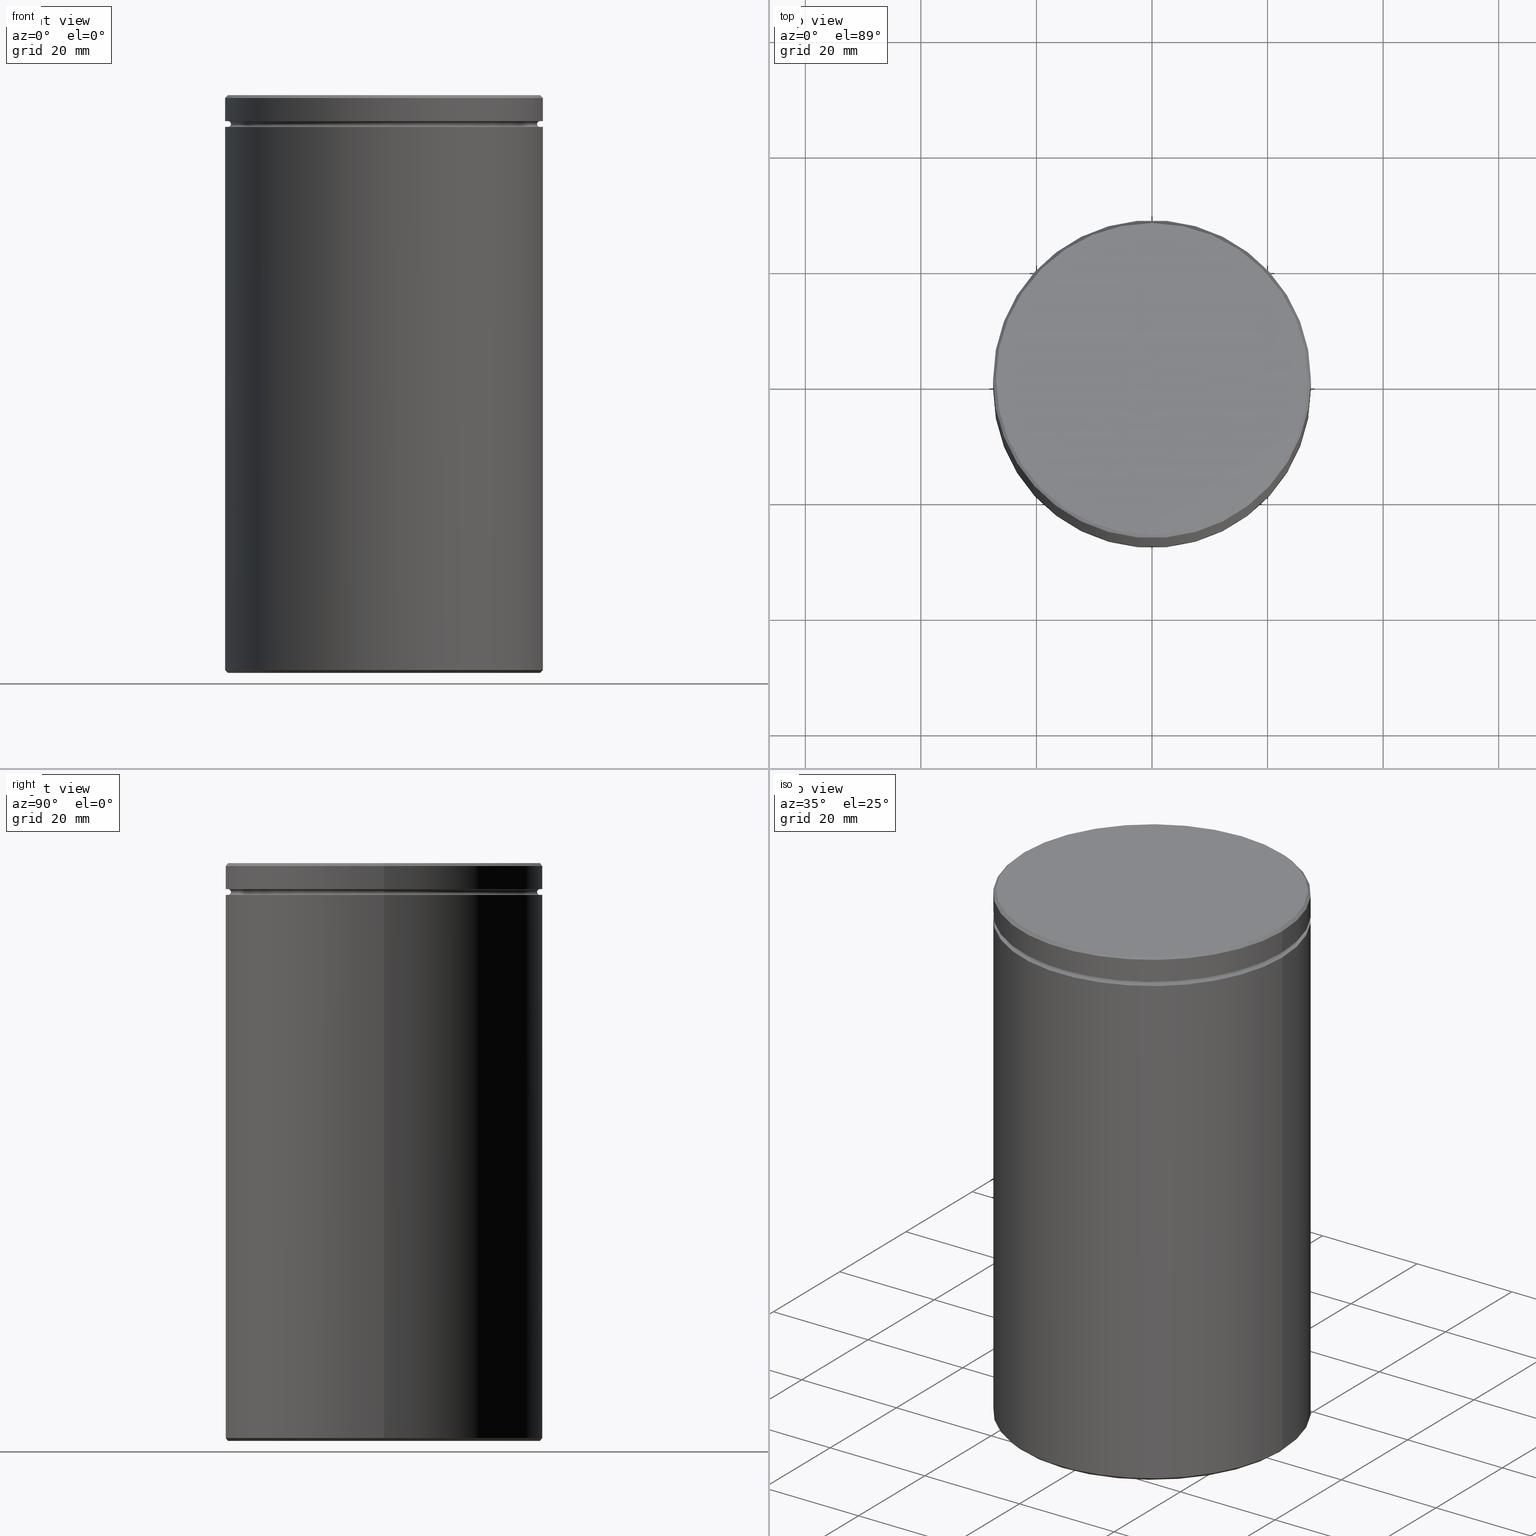
[diagram: canonical four-view strip — front | top / right | iso, engineering-drawing reading convention]
A machine part, canonical four-view strip (front | top / right | iso — engineering-drawing reading convention). The complete STEP part file that produces these views, byte-faithful:
ISO-10303-21;
HEADER;
FILE_DESCRIPTION (( 'STEP AP203' ),
    '1' );
FILE_NAME ('9ac2.STEP',
    '2024-01-02T17:54:37',
    ( '' ),
    ( '' ),
    'SwSTEP 2.0',
    'SolidWorks 2019',
    '' );
FILE_SCHEMA (( 'CONFIG_CONTROL_DESIGN' ));
ENDSEC;

DATA;
#1 = DATE_AND_TIME ( #439, #125 ) ;
#2 = DIRECTION ( 'NONE',  ( 0.000000000000000000, 0.000000000000000000, -1.000000000000000000 ) ) ;
#3 = EDGE_LOOP ( 'NONE', ( #227, #422 ) ) ;
#4 = LINE ( 'NONE', #262, #310 ) ;
#5 = DIRECTION ( 'NONE',  ( -0.000000000000000000, -0.000000000000000000, 1.000000000000000000 ) ) ;
#6 = ORIENTED_EDGE ( 'NONE', *, *, #9, .T. ) ;
#7 = AXIS2_PLACEMENT_3D ( 'NONE', #317, #569, #348 ) ;
#8 = CARTESIAN_POINT ( 'NONE',  ( -27.00000000000000000, 0.000000000000000000, -5.000000000000000888 ) ) ;
#9 = EDGE_CURVE ( 'NONE', #347, #534, #212, .T. ) ;
#10 = EDGE_LOOP ( 'NONE', ( #473, #131, #211, #224 ) ) ;
#11 = CARTESIAN_POINT ( 'NONE',  ( 0.000000000000000000, 0.000000000000000000, -4.500000000000000888 ) ) ;
#12 = EDGE_LOOP ( 'NONE', ( #319, #200, #179, #83 ) ) ;
#13 = ORIENTED_EDGE ( 'NONE', *, *, #49, .T. ) ;
#14 = CARTESIAN_POINT ( 'NONE',  ( 0.000000000000000000, 0.000000000000000000, 0.000000000000000000 ) ) ;
#15 = UNCERTAINTY_MEASURE_WITH_UNIT (LENGTH_MEASURE( 1.000000000000000082E-05 ), #445, 'distance_accuracy_value', 'NONE');
#16 = CARTESIAN_POINT ( 'NONE',  ( 27.00000000000000000, 3.306546357697854128E-15, -4.500000000000000888 ) ) ;
#17 = CARTESIAN_POINT ( 'NONE',  ( -20.50000000000000000, 0.000000000000000000, -29.00000000000001066 ) ) ;
#18 = AXIS2_PLACEMENT_3D ( 'NONE', #231, #5, #434 ) ;
#19 = CALENDAR_DATE ( 2024, 2, 1 ) ;
#20 = CARTESIAN_POINT ( 'NONE',  ( 27.50000000000000000, 0.000000000000000000, -0.5000000000000143219 ) ) ;
#21 = CARTESIAN_POINT ( 'NONE',  ( 27.00000000000000000, 3.306546357697853733E-15, -5.000000000000000888 ) ) ;
#22 = DIRECTION ( 'NONE',  ( -0.000000000000000000, -0.000000000000000000, -1.000000000000000000 ) ) ;
#23 = CARTESIAN_POINT ( 'NONE',  ( -27.50000000000000000, 3.367778697655221307E-15, -99.49999999999995737 ) ) ;
#24 = AXIS2_PLACEMENT_3D ( 'NONE', #504, #108, #60 ) ;
#25 = CIRCLE ( 'NONE', #247, 0.5000000000000004441 ) ;
#26 = CARTESIAN_POINT ( 'NONE',  ( 26.99999999999997868, 3.337162527676536337E-15, 0.000000000000000000 ) ) ;
#27 = LINE ( 'NONE', #296, #449 ) ;
#28 = LINE ( 'NONE', #181, #98 ) ;
#29 = ORIENTED_EDGE ( 'NONE', *, *, #366, .T. ) ;
#30 = EDGE_CURVE ( 'NONE', #524, #491, #184, .T. ) ;
#31 = CARTESIAN_POINT ( 'NONE',  ( 0.000000000000000000, 0.000000000000000000, -29.00000000000001066 ) ) ;
#32 = APPROVAL_PERSON_ORGANIZATION ( #312, #44, #415 ) ;
#33 = CALENDAR_DATE ( 2024, 2, 1 ) ;
#34 = DIRECTION ( 'NONE',  ( -0.000000000000000000, -0.000000000000000000, 1.000000000000000000 ) ) ;
#35 = CC_DESIGN_PERSON_AND_ORGANIZATION_ASSIGNMENT ( #522, #129, ( #507 ) ) ;
#36 = CARTESIAN_POINT ( 'NONE',  ( 27.50000000000000000, 0.000000000000000000, 0.000000000000000000 ) ) ;
#37 = VERTEX_POINT ( 'NONE', #20 ) ;
#38 = FACE_OUTER_BOUND ( 'NONE', #314, .T. ) ;
#39 = ORIENTED_EDGE ( 'NONE', *, *, #294, .T. ) ;
#40 = AXIS2_PLACEMENT_3D ( 'NONE', #72, #332, #157 ) ;
#41 = PERSON_AND_ORGANIZATION ( #162, #437 ) ;
#42 = CARTESIAN_POINT ( 'NONE',  ( 26.99999999999996803, 0.000000000000000000, -100.0000000000000000 ) ) ;
#43 = VERTEX_POINT ( 'NONE', #499 ) ;
#44 = APPROVAL ( #454, 'NEUR�EN�' ) ;
#45 = CARTESIAN_POINT ( 'NONE',  ( 0.000000000000000000, 0.000000000000000000, -29.00000000000001066 ) ) ;
#46 = ORIENTED_EDGE ( 'NONE', *, *, #472, .F. ) ;
#47 = DIRECTION ( 'NONE',  ( -0.000000000000000000, -0.000000000000000000, 1.000000000000000000 ) ) ;
#48 = CARTESIAN_POINT ( 'NONE',  ( 0.000000000000000000, 27.50000000000000000, -100.0000000000000000 ) ) ;
#49 = EDGE_CURVE ( 'NONE', #252, #403, #202, .T. ) ;
#50 = DIRECTION ( 'NONE',  ( 1.000000000000000000, 0.000000000000000000, 0.000000000000000000 ) ) ;
#51 = AXIS2_PLACEMENT_3D ( 'NONE', #375, #553, #75 ) ;
#52 = EDGE_LOOP ( 'NONE', ( #446, #563 ) ) ;
#53 = VECTOR ( 'NONE', #115, 1000.000000000000000 ) ;
#54 = CARTESIAN_POINT ( 'NONE',  ( 0.000000000000000000, 0.000000000000000000, -4.999999999999999112 ) ) ;
#55 = VECTOR ( 'NONE', #34, 1000.000000000000000 ) ;
#56 = PRODUCT_DEFINITION ( 'NEZN�M�', '', #285, #501 ) ;
#57 = ORIENTED_EDGE ( 'NONE', *, *, #567, .F. ) ;
#58 = VERTEX_POINT ( 'NONE', #16 ) ;
#59 = DIRECTION ( 'NONE',  ( -1.000000000000000000, 0.000000000000000000, 0.000000000000000000 ) ) ;
#60 = DIRECTION ( 'NONE',  ( 1.000000000000000000, 0.000000000000000000, 0.000000000000000000 ) ) ;
#61 = PERSON_AND_ORGANIZATION ( #162, #437 ) ;
#62 = EDGE_CURVE ( 'NONE', #347, #368, #509, .T. ) ;
#63 = DIRECTION ( 'NONE',  ( -0.000000000000000000, -0.000000000000000000, 1.000000000000000000 ) ) ;
#64 = CIRCLE ( 'NONE', #557, 26.99999999999996803 ) ;
#65 = CIRCLE ( 'NONE', #158, 27.50000000000000000 ) ;
#66 = CC_DESIGN_PERSON_AND_ORGANIZATION_ASSIGNMENT ( #418, #114, ( #285 ) ) ;
#67 = DIRECTION ( 'NONE',  ( 1.000000000000000000, 0.000000000000000000, 0.000000000000000000 ) ) ;
#68 = APPROVAL_DATE_TIME ( #544, #119 ) ;
#69 = EDGE_LOOP ( 'NONE', ( #160, #186, #425, #384 ) ) ;
#70 = DIRECTION ( 'NONE',  ( 1.000000000000000000, 0.000000000000000000, 0.000000000000000000 ) ) ;
#71 = EDGE_CURVE ( 'NONE', #524, #206, #219, .T. ) ;
#72 = CARTESIAN_POINT ( 'NONE',  ( 0.000000000000000000, 0.000000000000000000, -100.0000000000000000 ) ) ;
#73 = AXIS2_PLACEMENT_3D ( 'NONE', #280, #152, #322 ) ;
#74 = TOROIDAL_SURFACE ( 'NONE', #428, 27.00000000000000000, 0.5000000000000000000 ) ;
#75 = DIRECTION ( 'NONE',  ( -1.000000000000000000, 0.000000000000000000, 0.000000000000000000 ) ) ;
#76 = EDGE_CURVE ( 'NONE', #534, #43, #462, .T. ) ;
#77 = CC_DESIGN_PERSON_AND_ORGANIZATION_ASSIGNMENT ( #61, #360, ( #329 ) ) ;
#78 = MECHANICAL_CONTEXT ( 'NONE', #398, 'mechanical' ) ;
#79 = DIRECTION ( 'NONE',  ( 0.000000000000000000, 0.000000000000000000, -1.000000000000000000 ) ) ;
#80 = CIRCLE ( 'NONE', #342, 26.99999999999997868 ) ;
#81 = CIRCLE ( 'NONE', #264, 27.50000000000000000 ) ;
#82 = CYLINDRICAL_SURFACE ( 'NONE', #138, 27.50000000000000000 ) ;
#83 = ORIENTED_EDGE ( 'NONE', *, *, #432, .F. ) ;
#84 = ADVANCED_FACE ( 'NONE', ( #464 ), #465, .F. ) ;
#85 = DIRECTION ( 'NONE',  ( 1.000000000000000000, 0.000000000000000000, 0.000000000000000000 ) ) ;
#86 = ORIENTED_EDGE ( 'NONE', *, *, #94, .F. ) ;
#87 = DIRECTION ( 'NONE',  ( -0.000000000000000000, -1.000000000000000000, -0.000000000000000000 ) ) ;
#88 = CIRCLE ( 'NONE', #167, 0.5000000000000004441 ) ;
#89 = CONICAL_SURFACE ( 'NONE', #565, 26.99999999999997868, 0.7853981633974552734 ) ;
#90 = DIRECTION ( 'NONE',  ( 0.000000000000000000, 0.000000000000000000, -1.000000000000000000 ) ) ;
#91 = CYLINDRICAL_SURFACE ( 'NONE', #352, 27.50000000000000000 ) ;
#92 = ORIENTED_EDGE ( 'NONE', *, *, #315, .F. ) ;
#93 = CARTESIAN_POINT ( 'NONE',  ( -27.00000000000000000, 3.306546357697853733E-15, -4.999999999999999112 ) ) ;
#94 = EDGE_CURVE ( 'NONE', #518, #345, #457, .T. ) ;
#95 = FACE_BOUND ( 'NONE', #52, .T. ) ;
#96 = ORIENTED_EDGE ( 'NONE', *, *, #274, .T. ) ;
#97 = FACE_OUTER_BOUND ( 'NONE', #515, .T. ) ;
#98 = VECTOR ( 'NONE', #399, 1000.000000000000000 ) ;
#99 = ORIENTED_EDGE ( 'NONE', *, *, #71, .T. ) ;
#100 = CIRCLE ( 'NONE', #558, 27.00000000000000000 ) ;
#101 = PLANE ( 'NONE',  #109 ) ;
#102 = ORIENTED_EDGE ( 'NONE', *, *, #438, .T. ) ;
#103 = DIRECTION ( 'NONE',  ( -0.000000000000000000, -0.000000000000000000, 1.000000000000000000 ) ) ;
#104 = ADVANCED_FACE ( 'NONE', ( #106 ), #367, .T. ) ;
#105 = SECURITY_CLASSIFICATION_LEVEL ( 'unclassified' ) ;
#106 = FACE_OUTER_BOUND ( 'NONE', #120, .T. ) ;
#107 = PERSON_AND_ORGANIZATION ( #162, #437 ) ;
#108 = DIRECTION ( 'NONE',  ( -0.000000000000000000, -0.000000000000000000, 1.000000000000000000 ) ) ;
#109 = AXIS2_PLACEMENT_3D ( 'NONE', #305, #483, #143 ) ;
#110 = CC_DESIGN_APPROVAL ( #44, ( #285 ) ) ;
#111 = DATE_AND_TIME ( #500, #353 ) ;
#112 = EDGE_CURVE ( 'NONE', #518, #297, #290, .T. ) ;
#113 = DIRECTION ( 'NONE',  ( 1.000000000000000000, 0.000000000000000000, 0.000000000000000000 ) ) ;
#114 = PERSON_AND_ORGANIZATION_ROLE ( 'creator' ) ;
#115 = DIRECTION ( 'NONE',  ( -0.7071067811865401342, 8.659560562354842879E-17, 0.7071067811865549002 ) ) ;
#116 = CC_DESIGN_PERSON_AND_ORGANIZATION_ASSIGNMENT ( #107, #194, ( #285 ) ) ;
#117 = DIRECTION ( 'NONE',  ( -0.000000000000000000, -0.000000000000000000, 1.000000000000000000 ) ) ;
#118 = AXIS2_PLACEMENT_3D ( 'NONE', #243, #548, #414 ) ;
#119 = APPROVAL ( #410, 'NEUR�EN�' ) ;
#120 = EDGE_LOOP ( 'NONE', ( #92, #170, #350, #57 ) ) ;
#121 = DIRECTION ( 'NONE',  ( -1.000000000000000000, 0.000000000000000000, 0.000000000000000000 ) ) ;
#122 = EDGE_LOOP ( 'NONE', ( #494, #189, #13, #463 ) ) ;
#123 = AXIS2_PLACEMENT_3D ( 'NONE', #163, #333, #468 ) ;
#124 = APPROVAL_PERSON_ORGANIZATION ( #370, #119, #459 ) ;
#125 = LOCAL_TIME ( 18, 54, 37.00000000000000000, #484 ) ;
#126 = ADVANCED_FACE ( 'NONE', ( #372, #551 ), #411, .T. ) ;
#127 = CARTESIAN_POINT ( 'NONE',  ( 0.000000000000000000, 0.000000000000000000, 0.000000000000000000 ) ) ;
#128 = VERTEX_POINT ( 'NONE', #365 ) ;
#129 = PERSON_AND_ORGANIZATION_ROLE ( 'design_owner' ) ;
#130 = CARTESIAN_POINT ( 'NONE',  ( -27.00000000000000000, 0.000000000000000000, -4.500000000000000888 ) ) ;
#131 = ORIENTED_EDGE ( 'NONE', *, *, #155, .T. ) ;
#132 = DIRECTION ( 'NONE',  ( -1.000000000000000000, 1.224646799147349509E-16, 0.000000000000000000 ) ) ;
#133 = DIRECTION ( 'NONE',  ( -1.000000000000000000, 0.000000000000000000, 0.000000000000000000 ) ) ;
#134 = EDGE_LOOP ( 'NONE', ( #39, #173 ) ) ;
#135 = DIRECTION ( 'NONE',  ( 0.7071067811865524577, 8.659560562354994488E-17, -0.7071067811865426878 ) ) ;
#136 = EDGE_CURVE ( 'NONE', #206, #524, #176, .T. ) ;
#137 = CIRCLE ( 'NONE', #458, 27.00000000000000000 ) ;
#138 = AXIS2_PLACEMENT_3D ( 'NONE', #127, #300, #479 ) ;
#139 = DIRECTION ( 'NONE',  ( -1.000000000000000000, 0.000000000000000000, -0.000000000000000000 ) ) ;
#140 = ORIENTED_EDGE ( 'NONE', *, *, #9, .F. ) ;
#141 = FACE_OUTER_BOUND ( 'NONE', #69, .T. ) ;
#142 = VERTEX_POINT ( 'NONE', #26 ) ;
#143 = DIRECTION ( 'NONE',  ( 1.000000000000000000, 0.000000000000000000, 0.000000000000000000 ) ) ;
#144 = EDGE_LOOP ( 'NONE', ( #527, #566, #326, #46 ) ) ;
#145 = EDGE_LOOP ( 'NONE', ( #450, #140, #386, #260 ) ) ;
#146 = DIRECTION ( 'NONE',  ( -0.000000000000000000, -0.000000000000000000, 1.000000000000000000 ) ) ;
#147 = DATE_AND_TIME ( #363, #299 ) ;
#148 = ORIENTED_EDGE ( 'NONE', *, *, #503, .T. ) ;
#149 = CIRCLE ( 'NONE', #549, 27.50000000000000000 ) ;
#150 = CARTESIAN_POINT ( 'NONE',  ( 0.000000000000000000, 0.000000000000000000, -99.49999999999995737 ) ) ;
#151 = EDGE_CURVE ( 'NONE', #142, #252, #239, .T. ) ;
#152 = DIRECTION ( 'NONE',  ( -0.000000000000000000, -0.000000000000000000, 1.000000000000000000 ) ) ;
#153 = ORIENTED_EDGE ( 'NONE', *, *, #253, .F. ) ;
#154 = DIRECTION ( 'NONE',  ( -0.000000000000000000, -0.000000000000000000, 1.000000000000000000 ) ) ;
#155 = EDGE_CURVE ( 'NONE', #128, #480, #149, .T. ) ;
#156 = MANIFOLD_SOLID_BREP ( 'Zaoblit1', #229 ) ;
#157 = DIRECTION ( 'NONE',  ( -1.000000000000000000, 0.000000000000000000, 0.000000000000000000 ) ) ;
#158 = AXIS2_PLACEMENT_3D ( 'NONE', #226, #313, #85 ) ;
#159 = COORDINATED_UNIVERSAL_TIME_OFFSET ( 1, 0, .AHEAD. ) ;
#160 = ORIENTED_EDGE ( 'NONE', *, *, #136, .F. ) ;
#161 = CARTESIAN_POINT ( 'NONE',  ( 20.50000000000000000, 2.510525938252074481E-15, -29.00000000000001066 ) ) ;
#162 = PERSON ( 'NEUR�EN�', 'NEUR�EN�', 'NEUR�EN�', ('NEUR�EN�'), ('NEUR�EN�'), ('NEUR�EN�') ) ;
#163 = CARTESIAN_POINT ( 'NONE',  ( 0.000000000000000000, 0.000000000000000000, -0.5000000000000143219 ) ) ;
#164 = CARTESIAN_POINT ( 'NONE',  ( -27.50000000000000000, 3.367778697655221307E-15, -0.5000000000000143219 ) ) ;
#165 = ORIENTED_EDGE ( 'NONE', *, *, #240, .F. ) ;
#166 = EDGE_CURVE ( 'NONE', #534, #347, #400, .T. ) ;
#167 = AXIS2_PLACEMENT_3D ( 'NONE', #8, #87, #275 ) ;
#168 = AXIS2_PLACEMENT_3D ( 'NONE', #429, #172, #340 ) ;
#169 = COORDINATED_UNIVERSAL_TIME_OFFSET ( 1, 0, .AHEAD. ) ;
#170 = ORIENTED_EDGE ( 'NONE', *, *, #472, .T. ) ;
#171 = CC_DESIGN_DATE_AND_TIME_ASSIGNMENT ( #1, #349, ( #56 ) ) ;
#172 = DIRECTION ( 'NONE',  ( 0.000000000000000000, 0.000000000000000000, -1.000000000000000000 ) ) ;
#173 = ORIENTED_EDGE ( 'NONE', *, *, #567, .T. ) ;
#174 = ADVANCED_FACE ( 'NONE', ( #328 ), #195, .T. ) ;
#175 = CARTESIAN_POINT ( 'NONE',  ( 0.000000000000000000, 0.000000000000000000, -99.49999999999995737 ) ) ;
#176 = CIRCLE ( 'NONE', #362, 26.50000000000000000 ) ;
#177 = DIRECTION ( 'NONE',  ( 0.000000000000000000, 0.000000000000000000, -1.000000000000000000 ) ) ;
#178 = CARTESIAN_POINT ( 'NONE',  ( 0.000000000000000000, 0.000000000000000000, -5.000000000000000888 ) ) ;
#179 = ORIENTED_EDGE ( 'NONE', *, *, #378, .T. ) ;
#180 = EDGE_CURVE ( 'NONE', #297, #182, #542, .T. ) ;
#181 = CARTESIAN_POINT ( 'NONE',  ( 27.50000000000000000, 0.000000000000000000, 0.000000000000000000 ) ) ;
#182 = VERTEX_POINT ( 'NONE', #419 ) ;
#183 = FACE_OUTER_BOUND ( 'NONE', #3, .T. ) ;
#184 = CIRCLE ( 'NONE', #466, 0.5000000000000004441 ) ;
#185 = AXIS2_PLACEMENT_3D ( 'NONE', #45, #2, #139 ) ;
#186 = ORIENTED_EDGE ( 'NONE', *, *, #331, .T. ) ;
#187 = DIRECTION ( 'NONE',  ( -1.000000000000000000, 0.000000000000000000, 0.000000000000000000 ) ) ;
#188 = DIRECTION ( 'NONE',  ( 0.000000000000000000, 0.000000000000000000, -1.000000000000000000 ) ) ;
#189 = ORIENTED_EDGE ( 'NONE', *, *, #208, .F. ) ;
#190 = FACE_OUTER_BOUND ( 'NONE', #10, .T. ) ;
#191 = ORIENTED_EDGE ( 'NONE', *, *, #265, .T. ) ;
#192 = ADVANCED_FACE ( 'NONE', ( #207 ), #531, .T. ) ;
#193 = EDGE_LOOP ( 'NONE', ( #547, #258, #293, #381 ) ) ;
#194 = PERSON_AND_ORGANIZATION_ROLE ( 'design_supplier' ) ;
#195 = CONICAL_SURFACE ( 'NONE', #298, 27.50000000000000000, 0.7853981633974378429 ) ;
#196 = CARTESIAN_POINT ( 'NONE',  ( 27.50000000000000000, 0.000000000000000000, -99.49999999999995737 ) ) ;
#197 = AXIS2_PLACEMENT_3D ( 'NONE', #421, #79, #210 ) ;
#198 = CARTESIAN_POINT ( 'NONE',  ( 0.000000000000000000, 0.000000000000000000, -29.00000000000001066 ) ) ;
#199 = EDGE_CURVE ( 'NONE', #58, #477, #512, .T. ) ;
#200 = ORIENTED_EDGE ( 'NONE', *, *, #371, .T. ) ;
#201 = CARTESIAN_POINT ( 'NONE',  ( 0.000000000000000000, 0.000000000000000000, 0.000000000000000000 ) ) ;
#202 = LINE ( 'NONE', #408, #335 ) ;
#203 = AXIS2_PLACEMENT_3D ( 'NONE', #356, #452, #187 ) ;
#204 = DIRECTION ( 'NONE',  ( -1.000000000000000000, -1.224646799147349509E-16, 0.000000000000000000 ) ) ;
#205 = LOCAL_TIME ( 18, 54, 37.00000000000000000, #159 ) ;
#206 = VERTEX_POINT ( 'NONE', #249 ) ;
#207 = FACE_OUTER_BOUND ( 'NONE', #144, .T. ) ;
#208 = EDGE_CURVE ( 'NONE', #252, #142, #80, .T. ) ;
#209 = DIRECTION ( 'NONE',  ( 0.000000000000000000, 0.000000000000000000, 1.000000000000000000 ) ) ;
#210 = DIRECTION ( 'NONE',  ( 1.000000000000000000, 0.000000000000000000, 0.000000000000000000 ) ) ;
#211 = ORIENTED_EDGE ( 'NONE', *, *, #432, .T. ) ;
#212 = CIRCLE ( 'NONE', #276, 20.50000000000000000 ) ;
#213 = CIRCLE ( 'NONE', #18, 27.00000000000000000 ) ;
#214 = DATE_AND_TIME ( #33, #460 ) ;
#215 = CARTESIAN_POINT ( 'NONE',  ( 0.000000000000000000, 0.000000000000000000, -5.500000000000000000 ) ) ;
#216 = EDGE_CURVE ( 'NONE', #37, #403, #283, .T. ) ;
#217 = DIRECTION ( 'NONE',  ( 0.000000000000000000, 0.000000000000000000, -1.000000000000000000 ) ) ;
#218 = CARTESIAN_POINT ( 'NONE',  ( 27.50000000000000000, 0.000000000000000000, -5.500000000000000000 ) ) ;
#219 = CIRCLE ( 'NONE', #73, 26.50000000000000000 ) ;
#220 = TOROIDAL_SURFACE ( 'NONE', #256, 27.00000000000000000, 0.5000000000000000000 ) ;
#221 = CARTESIAN_POINT ( 'NONE',  ( 20.50000000000000000, 2.510525938252074481E-15, -29.00000000000001066 ) ) ;
#222 = FACE_OUTER_BOUND ( 'NONE', #12, .T. ) ;
#223 = EDGE_CURVE ( 'NONE', #345, #490, #28, .T. ) ;
#224 = ORIENTED_EDGE ( 'NONE', *, *, #216, .T. ) ;
#225 = DIRECTION ( 'NONE',  ( 0.000000000000000000, 0.000000000000000000, -1.000000000000000000 ) ) ;
#226 = CARTESIAN_POINT ( 'NONE',  ( 0.000000000000000000, 0.000000000000000000, -5.500000000000000000 ) ) ;
#227 = ORIENTED_EDGE ( 'NONE', *, *, #338, .F. ) ;
#228 = DIRECTION ( 'NONE',  ( -1.000000000000000000, 0.000000000000000000, -0.000000000000000000 ) ) ;
#229 = CLOSED_SHELL ( 'NONE', ( #552, #323, #174, #461, #453, #475, #281, #511, #288, #344, #248, #126, #104, #84, #560, #423, #192, #306, #537 ) ) ;
#230 = CIRCLE ( 'NONE', #197, 27.50000000000000000 ) ;
#231 = CARTESIAN_POINT ( 'NONE',  ( 0.000000000000000000, 0.000000000000000000, -4.500000000000000888 ) ) ;
#232 = ORIENTED_EDGE ( 'NONE', *, *, #49, .F. ) ;
#233 = DIRECTION ( 'NONE',  ( -0.000000000000000000, -0.000000000000000000, 1.000000000000000000 ) ) ;
#234 = EDGE_CURVE ( 'NONE', #368, #43, #263, .T. ) ;
#235 = ORIENTED_EDGE ( 'NONE', *, *, #387, .F. ) ;
#236 = FACE_OUTER_BOUND ( 'NONE', #430, .T. ) ;
#237 = EDGE_LOOP ( 'NONE', ( #339, #301 ) ) ;
#238 = DIRECTION ( 'NONE',  ( -0.7071067811865524577, 0.000000000000000000, -0.7071067811865426878 ) ) ;
#239 = CIRCLE ( 'NONE', #24, 26.99999999999997868 ) ;
#240 = EDGE_CURVE ( 'NONE', #206, #477, #88, .T. ) ;
#241 = CARTESIAN_POINT ( 'NONE',  ( -20.50000000000000000, 0.000000000000000000, -29.00000000000001066 ) ) ;
#242 = CIRCLE ( 'NONE', #292, 20.50000000000000000 ) ;
#243 = CARTESIAN_POINT ( 'NONE',  ( 0.000000000000000000, 0.000000000000000000, -29.00000000000001066 ) ) ;
#244 = DIRECTION ( 'NONE',  ( 0.000000000000000000, -1.000000000000000000, 0.000000000000000000 ) ) ;
#245 = CARTESIAN_POINT ( 'NONE',  ( 0.000000000000000000, 0.000000000000000000, -4.500000000000000888 ) ) ;
#246 = AXIS2_PLACEMENT_3D ( 'NONE', #287, #369, #113 ) ;
#247 = AXIS2_PLACEMENT_3D ( 'NONE', #21, #417, #204 ) ;
#248 = ADVANCED_FACE ( 'NONE', ( #359, #183 ), #309, .T. ) ;
#249 = CARTESIAN_POINT ( 'NONE',  ( -26.50000000000000000, 3.275930187719169552E-15, -4.999999999999999112 ) ) ;
#250 = EDGE_LOOP ( 'NONE', ( #394, #316, #148, #389 ) ) ;
#251 = CARTESIAN_POINT ( 'NONE',  ( 0.000000000000000000, 0.000000000000000000, 0.000000000000000000 ) ) ;
#252 = VERTEX_POINT ( 'NONE', #436 ) ;
#253 = EDGE_CURVE ( 'NONE', #297, #518, #64, .T. ) ;
#254 = DIRECTION ( 'NONE',  ( -0.000000000000000000, -0.000000000000000000, 1.000000000000000000 ) ) ;
#255 = AXIS2_PLACEMENT_3D ( 'NONE', #198, #22, #502 ) ;
#256 = AXIS2_PLACEMENT_3D ( 'NONE', #351, #532, #267 ) ;
#257 = DIRECTION ( 'NONE',  ( -1.000000000000000000, 0.000000000000000000, 0.000000000000000000 ) ) ;
#258 = ORIENTED_EDGE ( 'NONE', *, *, #315, .T. ) ;
#259 = DIRECTION ( 'NONE',  ( 1.000000000000000000, 0.000000000000000000, 0.000000000000000000 ) ) ;
#260 = ORIENTED_EDGE ( 'NONE', *, *, #234, .T. ) ;
#261 = ORIENTED_EDGE ( 'NONE', *, *, #274, .F. ) ;
#262 = CARTESIAN_POINT ( 'NONE',  ( 26.99999999999997868, 3.306546357697850972E-15, 0.000000000000000000 ) ) ;
#263 = CIRCLE ( 'NONE', #203, 20.50000000000000000 ) ;
#264 = AXIS2_PLACEMENT_3D ( 'NONE', #517, #254, #555 ) ;
#265 = EDGE_CURVE ( 'NONE', #142, #37, #4, .T. ) ;
#266 = ORIENTED_EDGE ( 'NONE', *, *, #199, .T. ) ;
#267 = DIRECTION ( 'NONE',  ( 1.000000000000000000, 0.000000000000000000, 0.000000000000000000 ) ) ;
#268 = APPROVAL ( #377, 'NEUR�EN�' ) ;
#269 = EDGE_LOOP ( 'NONE', ( #505, #29, #405, #165 ) ) ;
#270 = PRODUCT_DEFINITION_SHAPE ( 'NONE', 'NONE',  #56 ) ;
#271 = DIRECTION ( 'NONE',  ( 1.000000000000000000, 0.000000000000000000, 0.000000000000000000 ) ) ;
#272 = CARTESIAN_POINT ( 'NONE',  ( 27.00000000000000000, 0.000000000000000000, -5.500000000000000000 ) ) ;
#273 = CARTESIAN_POINT ( 'NONE',  ( 27.00000000000000000, 0.000000000000000000, -4.999999999999999112 ) ) ;
#274 = EDGE_CURVE ( 'NONE', #435, #491, #137, .T. ) ;
#275 = DIRECTION ( 'NONE',  ( 0.000000000000000000, 0.000000000000000000, -1.000000000000000000 ) ) ;
#276 = AXIS2_PLACEMENT_3D ( 'NONE', #358, #308, #486 ) ;
#277 = CIRCLE ( 'NONE', #497, 0.5000000000000004441 ) ;
#278 = ORIENTED_EDGE ( 'NONE', *, *, #199, .F. ) ;
#279 = CARTESIAN_POINT ( 'NONE',  ( 0.000000000000000000, 0.000000000000000000, 0.000000000000000000 ) ) ;
#280 = CARTESIAN_POINT ( 'NONE',  ( 0.000000000000000000, 0.000000000000000000, -4.999999999999999112 ) ) ;
#281 = ADVANCED_FACE ( 'NONE', ( #222 ), #91, .T. ) ;
#282 = DIRECTION ( 'NONE',  ( -0.000000000000000000, -0.000000000000000000, -1.000000000000000000 ) ) ;
#283 = CIRCLE ( 'NONE', #123, 27.50000000000000000 ) ;
#284 = DIRECTION ( 'NONE',  ( 0.7071067811865401342, 0.000000000000000000, 0.7071067811865549002 ) ) ;
#285 = PRODUCT_DEFINITION_FORMATION_WITH_SPECIFIED_SOURCE ( 'LIBOVOLN�', '', #507, .NOT_KNOWN. ) ;
#286 = DIRECTION ( 'NONE',  ( -0.000000000000000000, -0.000000000000000000, 1.000000000000000000 ) ) ;
#287 = CARTESIAN_POINT ( 'NONE',  ( 0.000000000000000000, 26.50000000000000000, -5.500000000000000000 ) ) ;
#288 = ADVANCED_FACE ( 'NONE', ( #97 ), #101, .T. ) ;
#289 = DIRECTION ( 'NONE',  ( 1.000000000000000000, 0.000000000000000000, 0.000000000000000000 ) ) ;
#290 = CIRCLE ( 'NONE', #40, 26.99999999999996803 ) ;
#291 = ORIENTED_EDGE ( 'NONE', *, *, #30, .T. ) ;
#292 = AXIS2_PLACEMENT_3D ( 'NONE', #388, #90, #393 ) ;
#293 = ORIENTED_EDGE ( 'NONE', *, *, #294, .F. ) ;
#294 = EDGE_CURVE ( 'NONE', #490, #540, #427, .T. ) ;
#295 = DIRECTION ( 'NONE',  ( -1.000000000000000000, 0.000000000000000000, 0.000000000000000000 ) ) ;
#296 = CARTESIAN_POINT ( 'NONE',  ( -27.50000000000000000, 3.367778697655221307E-15, 0.000000000000000000 ) ) ;
#297 = VERTEX_POINT ( 'NONE', #528 ) ;
#298 = AXIS2_PLACEMENT_3D ( 'NONE', #508, #286, #70 ) ;
#299 = LOCAL_TIME ( 18, 54, 37.00000000000000000, #412 ) ;
#300 = DIRECTION ( 'NONE',  ( -0.000000000000000000, -0.000000000000000000, 1.000000000000000000 ) ) ;
#301 = ORIENTED_EDGE ( 'NONE', *, *, #253, .T. ) ;
#302 = APPLICATION_PROTOCOL_DEFINITION ( 'international standard', 'config_control_design', 1994, #426 ) ;
#303 = FACE_OUTER_BOUND ( 'NONE', #456, .T. ) ;
#304 = ORIENTED_EDGE ( 'NONE', *, *, #331, .F. ) ;
#305 = CARTESIAN_POINT ( 'NONE',  ( 0.000000000000000000, 0.000000000000000000, 0.000000000000000000 ) ) ;
#306 = ADVANCED_FACE ( 'NONE', ( #236 ), #220, .F. ) ;
#307 = FACE_OUTER_BOUND ( 'NONE', #269, .T. ) ;
#308 = DIRECTION ( 'NONE',  ( 0.000000000000000000, 0.000000000000000000, -1.000000000000000000 ) ) ;
#309 = PLANE ( 'NONE',  #487 ) ;
#310 = VECTOR ( 'NONE', #135, 1000.000000000000000 ) ;
#311 = TOROIDAL_SURFACE ( 'NONE', #520, 27.00000000000000000, 0.5000000000000000000 ) ;
#312 = PERSON_AND_ORGANIZATION ( #162, #437 ) ;
#313 = DIRECTION ( 'NONE',  ( -0.000000000000000000, -0.000000000000000000, 1.000000000000000000 ) ) ;
#314 = EDGE_LOOP ( 'NONE', ( #6, #564 ) ) ;
#315 = EDGE_CURVE ( 'NONE', #182, #540, #492, .T. ) ;
#316 = ORIENTED_EDGE ( 'NONE', *, *, #76, .T. ) ;
#317 = CARTESIAN_POINT ( 'NONE',  ( 0.000000000000000000, 0.000000000000000000, -5.500000000000000000 ) ) ;
#318 = EDGE_LOOP ( 'NONE', ( #102, #96 ) ) ;
#319 = ORIENTED_EDGE ( 'NONE', *, *, #338, .T. ) ;
#320 = DIRECTION ( 'NONE',  ( -0.000000000000000000, -0.000000000000000000, 1.000000000000000000 ) ) ;
#321 = CARTESIAN_POINT ( 'NONE',  ( 27.50000000000000000, 0.000000000000000000, -99.49999999999995737 ) ) ;
#322 = DIRECTION ( 'NONE',  ( 1.000000000000000000, 0.000000000000000000, 0.000000000000000000 ) ) ;
#323 = ADVANCED_FACE ( 'NONE', ( #141 ), #311, .F. ) ;
#324 = DIRECTION ( 'NONE',  ( 1.000000000000000000, 0.000000000000000000, 0.000000000000000000 ) ) ;
#325 = DIRECTION ( 'NONE',  ( 1.000000000000000000, 0.000000000000000000, 0.000000000000000000 ) ) ;
#326 = ORIENTED_EDGE ( 'NONE', *, *, #94, .T. ) ;
#327 = VECTOR ( 'NONE', #545, 1000.000000000000000 ) ;
#328 = FACE_OUTER_BOUND ( 'NONE', #471, .T. ) ;
#329 = SECURITY_CLASSIFICATION ( '', '', #105 ) ;
#330 = APPROVAL_DATE_TIME ( #111, #44 ) ;
#331 = EDGE_CURVE ( 'NONE', #206, #435, #277, .T. ) ;
#332 = DIRECTION ( 'NONE',  ( 0.000000000000000000, 0.000000000000000000, -1.000000000000000000 ) ) ;
#333 = DIRECTION ( 'NONE',  ( 0.000000000000000000, 0.000000000000000000, -1.000000000000000000 ) ) ;
#334 = DIRECTION ( 'NONE',  ( -0.000000000000000000, -0.000000000000000000, 1.000000000000000000 ) ) ;
#335 = VECTOR ( 'NONE', #238, 1000.000000000000000 ) ;
#336 = ORIENTED_EDGE ( 'NONE', *, *, #240, .T. ) ;
#337 = AXIS2_PLACEMENT_3D ( 'NONE', #175, #334, #121 ) ;
#338 = EDGE_CURVE ( 'NONE', #480, #128, #448, .T. ) ;
#339 = ORIENTED_EDGE ( 'NONE', *, *, #112, .T. ) ;
#340 = DIRECTION ( 'NONE',  ( -1.000000000000000000, 0.000000000000000000, 0.000000000000000000 ) ) ;
#341 = CARTESIAN_POINT ( 'NONE',  ( 0.000000000000000000, 0.000000000000000000, 0.000000000000000000 ) ) ;
#342 = AXIS2_PLACEMENT_3D ( 'NONE', #420, #117, #289 ) ;
#343 = APPLICATION_PROTOCOL_DEFINITION ( 'international standard', 'config_control_design', 1994, #398 ) ;
#344 = ADVANCED_FACE ( 'NONE', ( #190 ), #406, .T. ) ;
#345 = VERTEX_POINT ( 'NONE', #321 ) ;
#346 = PERSON_AND_ORGANIZATION_ROLE ( 'creator' ) ;
#347 = VERTEX_POINT ( 'NONE', #17 ) ;
#348 = DIRECTION ( 'NONE',  ( 1.000000000000000000, 0.000000000000000000, 0.000000000000000000 ) ) ;
#349 = DATE_TIME_ROLE ( 'creation_date' ) ;
#350 = ORIENTED_EDGE ( 'NONE', *, *, #223, .T. ) ;
#351 = CARTESIAN_POINT ( 'NONE',  ( 0.000000000000000000, 0.000000000000000000, -4.999999999999999112 ) ) ;
#352 = AXIS2_PLACEMENT_3D ( 'NONE', #279, #535, #395 ) ;
#353 = LOCAL_TIME ( 18, 54, 37.00000000000000000, #407 ) ;
#354 = DIRECTION ( 'NONE',  ( -1.000000000000000000, 0.000000000000000000, -0.000000000000000000 ) ) ;
#355 = ORIENTED_EDGE ( 'NONE', *, *, #208, .T. ) ;
#356 = CARTESIAN_POINT ( 'NONE',  ( 0.000000000000000000, 0.000000000000000000, -100.0000000000000000 ) ) ;
#357 = PLANE ( 'NONE',  #373 ) ;
#358 = CARTESIAN_POINT ( 'NONE',  ( 0.000000000000000000, 0.000000000000000000, -29.00000000000001066 ) ) ;
#359 = FACE_BOUND ( 'NONE', #568, .T. ) ;
#360 = PERSON_AND_ORGANIZATION_ROLE ( 'classification_officer' ) ;
#361 = ORIENTED_EDGE ( 'NONE', *, *, #378, .F. ) ;
#362 = AXIS2_PLACEMENT_3D ( 'NONE', #546, #154, #324 ) ;
#363 = CALENDAR_DATE ( 2024, 2, 1 ) ;
#364 =( GEOMETRIC_REPRESENTATION_CONTEXT ( 3 ) GLOBAL_UNCERTAINTY_ASSIGNED_CONTEXT ( ( #15 ) ) GLOBAL_UNIT_ASSIGNED_CONTEXT ( ( #445, #402, #433 ) ) REPRESENTATION_CONTEXT ( 'NONE', 'WORKASPACE' ) );
#365 = CARTESIAN_POINT ( 'NONE',  ( -27.50000000000000000, 3.367778697655221307E-15, -4.500000000000000888 ) ) ;
#366 = EDGE_CURVE ( 'NONE', #524, #58, #25, .T. ) ;
#367 = CYLINDRICAL_SURFACE ( 'NONE', #474, 27.50000000000000000 ) ;
#368 = VERTEX_POINT ( 'NONE', #470 ) ;
#369 = DIRECTION ( 'NONE',  ( 0.000000000000000000, -0.000000000000000000, 1.000000000000000000 ) ) ;
#370 = PERSON_AND_ORGANIZATION ( #162, #437 ) ;
#371 = EDGE_CURVE ( 'NONE', #128, #403, #27, .T. ) ;
#372 = FACE_BOUND ( 'NONE', #318, .T. ) ;
#373 = AXIS2_PLACEMENT_3D ( 'NONE', #48, #177, #354 ) ;
#374 = CC_DESIGN_DATE_AND_TIME_ASSIGNMENT ( #147, #539, ( #329 ) ) ;
#375 = CARTESIAN_POINT ( 'NONE',  ( 0.000000000000000000, 0.000000000000000000, -4.500000000000000888 ) ) ;
#376 = DIRECTION ( 'NONE',  ( -0.000000000000000000, -0.000000000000000000, 1.000000000000000000 ) ) ;
#377 = APPROVAL_STATUS ( 'not_yet_approved' ) ;
#378 = EDGE_CURVE ( 'NONE', #403, #37, #230, .T. ) ;
#379 = AXIS2_PLACEMENT_3D ( 'NONE', #150, #320, #510 ) ;
#380 = FACE_OUTER_BOUND ( 'NONE', #250, .T. ) ;
#381 = ORIENTED_EDGE ( 'NONE', *, *, #223, .F. ) ;
#382 = APPROVAL_PERSON_ORGANIZATION ( #481, #268, #559 ) ;
#383 = CYLINDRICAL_SURFACE ( 'NONE', #489, 20.50000000000000000 ) ;
#384 = ORIENTED_EDGE ( 'NONE', *, *, #30, .F. ) ;
#385 = FACE_OUTER_BOUND ( 'NONE', #122, .T. ) ;
#386 = ORIENTED_EDGE ( 'NONE', *, *, #62, .T. ) ;
#387 = EDGE_CURVE ( 'NONE', #345, #182, #81, .T. ) ;
#388 = CARTESIAN_POINT ( 'NONE',  ( 0.000000000000000000, 0.000000000000000000, -100.0000000000000000 ) ) ;
#389 = ORIENTED_EDGE ( 'NONE', *, *, #62, .F. ) ;
#390 = VECTOR ( 'NONE', #284, 1000.000000000000000 ) ;
#391 = AXIS2_PLACEMENT_3D ( 'NONE', #493, #188, #482 ) ;
#392 = CC_DESIGN_APPROVAL ( #119, ( #329 ) ) ;
#393 = DIRECTION ( 'NONE',  ( -1.000000000000000000, 0.000000000000000000, 0.000000000000000000 ) ) ;
#394 = ORIENTED_EDGE ( 'NONE', *, *, #166, .F. ) ;
#395 = DIRECTION ( 'NONE',  ( 1.000000000000000000, 0.000000000000000000, 0.000000000000000000 ) ) ;
#396 = ORIENTED_EDGE ( 'NONE', *, *, #151, .F. ) ;
#397 = CARTESIAN_POINT ( 'NONE',  ( 0.000000000000000000, 0.000000000000000000, -5.500000000000000000 ) ) ;
#398 = APPLICATION_CONTEXT ( 'configuration controlled 3d designs of mechanical parts and assemblies' ) ;
#399 = DIRECTION ( 'NONE',  ( -0.000000000000000000, -0.000000000000000000, 1.000000000000000000 ) ) ;
#400 = CIRCLE ( 'NONE', #118, 20.50000000000000000 ) ;
#401 = TOROIDAL_SURFACE ( 'NONE', #391, 27.00000000000000000, 0.5000000000000000000 ) ;
#402 =( NAMED_UNIT ( * ) PLANE_ANGLE_UNIT ( ) SI_UNIT ( $, .RADIAN. ) );
#403 = VERTEX_POINT ( 'NONE', #164 ) ;
#404 = DIRECTION ( 'NONE',  ( 1.224646799147353207E-16, 1.000000000000000000, 0.000000000000000000 ) ) ;
#405 = ORIENTED_EDGE ( 'NONE', *, *, #495, .F. ) ;
#406 = CYLINDRICAL_SURFACE ( 'NONE', #543, 27.50000000000000000 ) ;
#407 = COORDINATED_UNIVERSAL_TIME_OFFSET ( 1, 0, .AHEAD. ) ;
#408 = CARTESIAN_POINT ( 'NONE',  ( -26.99999999999997868, 0.000000000000000000, 0.000000000000000000 ) ) ;
#409 = VECTOR ( 'NONE', #282, 1000.000000000000000 ) ;
#410 = APPROVAL_STATUS ( 'not_yet_approved' ) ;
#411 = PLANE ( 'NONE',  #246 ) ;
#412 = COORDINATED_UNIVERSAL_TIME_OFFSET ( 1, 0, .AHEAD. ) ;
#413 = EDGE_LOOP ( 'NONE', ( #396, #191, #361, #232 ) ) ;
#414 = DIRECTION ( 'NONE',  ( -1.000000000000000000, 0.000000000000000000, 0.000000000000000000 ) ) ;
#415 = APPROVAL_ROLE ( '' ) ;
#416 = DIRECTION ( 'NONE',  ( 0.000000000000000000, 0.000000000000000000, -1.000000000000000000 ) ) ;
#417 = DIRECTION ( 'NONE',  ( -1.224646799147353207E-16, 1.000000000000000000, 0.000000000000000000 ) ) ;
#418 = PERSON_AND_ORGANIZATION ( #162, #437 ) ;
#419 = CARTESIAN_POINT ( 'NONE',  ( -27.50000000000000000, 3.367778697655221307E-15, -99.49999999999995737 ) ) ;
#420 = CARTESIAN_POINT ( 'NONE',  ( 0.000000000000000000, 0.000000000000000000, 0.000000000000000000 ) ) ;
#421 = CARTESIAN_POINT ( 'NONE',  ( 0.000000000000000000, 0.000000000000000000, -0.5000000000000143219 ) ) ;
#422 = ORIENTED_EDGE ( 'NONE', *, *, #155, .F. ) ;
#423 = ADVANCED_FACE ( 'NONE', ( #385 ), #89, .T. ) ;
#424 = DIRECTION ( 'NONE',  ( 1.000000000000000000, 0.000000000000000000, 0.000000000000000000 ) ) ;
#425 = ORIENTED_EDGE ( 'NONE', *, *, #438, .F. ) ;
#426 = APPLICATION_CONTEXT ( 'configuration controlled 3d designs of mechanical parts and assemblies' ) ;
#427 = CIRCLE ( 'NONE', #7, 27.50000000000000000 ) ;
#428 = AXIS2_PLACEMENT_3D ( 'NONE', #178, #526, #133 ) ;
#429 = CARTESIAN_POINT ( 'NONE',  ( 0.000000000000000000, 0.000000000000000000, 0.000000000000000000 ) ) ;
#430 = EDGE_LOOP ( 'NONE', ( #304, #556, #291, #261 ) ) ;
#431 = ADVANCED_BREP_SHAPE_REPRESENTATION ( '9ac2', ( #156, #506 ), #364 ) ;
#432 = EDGE_CURVE ( 'NONE', #480, #37, #514, .T. ) ;
#433 =( NAMED_UNIT ( * ) SI_UNIT ( $, .STERADIAN. ) SOLID_ANGLE_UNIT ( ) );
#434 = DIRECTION ( 'NONE',  ( -1.000000000000000000, 0.000000000000000000, 0.000000000000000000 ) ) ;
#435 = VERTEX_POINT ( 'NONE', #521 ) ;
#436 = CARTESIAN_POINT ( 'NONE',  ( -26.99999999999997868, 0.000000000000000000, 0.000000000000000000 ) ) ;
#437 = ORGANIZATION ( 'NEUR�EN�', 'NEUR�EN�', '' ) ;
#438 = EDGE_CURVE ( 'NONE', #491, #435, #100, .T. ) ;
#439 = CALENDAR_DATE ( 2024, 2, 1 ) ;
#440 = CARTESIAN_POINT ( 'NONE',  ( -27.50000000000000000, 3.367778697655221307E-15, -5.500000000000000000 ) ) ;
#441 = CARTESIAN_POINT ( 'NONE',  ( -27.50000000000000000, 3.367778697655221307E-15, 0.000000000000000000 ) ) ;
#442 = CARTESIAN_POINT ( 'NONE',  ( 27.50000000000000000, 0.000000000000000000, -4.500000000000000888 ) ) ;
#443 = ORIENTED_EDGE ( 'NONE', *, *, #495, .T. ) ;
#444 = DIRECTION ( 'NONE',  ( 0.000000000000000000, 0.000000000000000000, -1.000000000000000000 ) ) ;
#445 =( LENGTH_UNIT ( ) NAMED_UNIT ( * ) SI_UNIT ( .MILLI., .METRE. ) );
#446 = ORIENTED_EDGE ( 'NONE', *, *, #234, .F. ) ;
#447 = DIRECTION ( 'NONE',  ( 0.000000000000000000, 0.000000000000000000, -1.000000000000000000 ) ) ;
#448 = CIRCLE ( 'NONE', #513, 27.50000000000000000 ) ;
#449 = VECTOR ( 'NONE', #376, 1000.000000000000000 ) ;
#450 = ORIENTED_EDGE ( 'NONE', *, *, #76, .F. ) ;
#451 = ORIENTED_EDGE ( 'NONE', *, *, #151, .T. ) ;
#452 = DIRECTION ( 'NONE',  ( 0.000000000000000000, 0.000000000000000000, -1.000000000000000000 ) ) ;
#453 = ADVANCED_FACE ( 'NONE', ( #380 ), #383, .F. ) ;
#454 = APPROVAL_STATUS ( 'not_yet_approved' ) ;
#455 = DIRECTION ( 'NONE',  ( 1.000000000000000000, 0.000000000000000000, 0.000000000000000000 ) ) ;
#456 = EDGE_LOOP ( 'NONE', ( #530, #99, #336, #278 ) ) ;
#457 = LINE ( 'NONE', #196, #390 ) ;
#458 = AXIS2_PLACEMENT_3D ( 'NONE', #397, #444, #50 ) ;
#459 = APPROVAL_ROLE ( '' ) ;
#460 = LOCAL_TIME ( 18, 54, 37.00000000000000000, #169 ) ;
#461 = ADVANCED_FACE ( 'NONE', ( #562 ), #467, .T. ) ;
#462 = LINE ( 'NONE', #161, #409 ) ;
#463 = ORIENTED_EDGE ( 'NONE', *, *, #216, .F. ) ;
#464 = FACE_OUTER_BOUND ( 'NONE', #145, .T. ) ;
#465 = CYLINDRICAL_SURFACE ( 'NONE', #255, 20.50000000000000000 ) ;
#466 = AXIS2_PLACEMENT_3D ( 'NONE', #273, #244, #416 ) ;
#467 = CONICAL_SURFACE ( 'NONE', #168, 26.99999999999997868, 0.7853981633974552734 ) ;
#468 = DIRECTION ( 'NONE',  ( 1.000000000000000000, 0.000000000000000000, 0.000000000000000000 ) ) ;
#469 = CC_DESIGN_SECURITY_CLASSIFICATION ( #329, ( #285 ) ) ;
#470 = CARTESIAN_POINT ( 'NONE',  ( -20.50000000000000000, 0.000000000000000000, -100.0000000000000000 ) ) ;
#471 = EDGE_LOOP ( 'NONE', ( #153, #536, #235, #86 ) ) ;
#472 = EDGE_CURVE ( 'NONE', #182, #345, #550, .T. ) ;
#473 = ORIENTED_EDGE ( 'NONE', *, *, #371, .F. ) ;
#474 = AXIS2_PLACEMENT_3D ( 'NONE', #201, #63, #455 ) ;
#475 = ADVANCED_FACE ( 'NONE', ( #476 ), #82, .T. ) ;
#476 = FACE_OUTER_BOUND ( 'NONE', #193, .T. ) ;
#477 = VERTEX_POINT ( 'NONE', #130 ) ;
#478 = VECTOR ( 'NONE', #47, 1000.000000000000000 ) ;
#479 = DIRECTION ( 'NONE',  ( 1.000000000000000000, 0.000000000000000000, 0.000000000000000000 ) ) ;
#480 = VERTEX_POINT ( 'NONE', #442 ) ;
#481 = PERSON_AND_ORGANIZATION ( #162, #437 ) ;
#482 = DIRECTION ( 'NONE',  ( -1.000000000000000000, 0.000000000000000000, 0.000000000000000000 ) ) ;
#483 = DIRECTION ( 'NONE',  ( 0.000000000000000000, -0.000000000000000000, 1.000000000000000000 ) ) ;
#484 = COORDINATED_UNIVERSAL_TIME_OFFSET ( 1, 0, .AHEAD. ) ;
#485 = PLANE ( 'NONE',  #185 ) ;
#486 = DIRECTION ( 'NONE',  ( -1.000000000000000000, 0.000000000000000000, 0.000000000000000000 ) ) ;
#487 = AXIS2_PLACEMENT_3D ( 'NONE', #538, #447, #228 ) ;
#488 = CARTESIAN_POINT ( 'NONE',  ( 0.000000000000000000, 0.000000000000000000, -100.0000000000000000 ) ) ;
#489 = AXIS2_PLACEMENT_3D ( 'NONE', #31, #516, #295 ) ;
#490 = VERTEX_POINT ( 'NONE', #218 ) ;
#491 = VERTEX_POINT ( 'NONE', #272 ) ;
#492 = LINE ( 'NONE', #441, #478 ) ;
#493 = CARTESIAN_POINT ( 'NONE',  ( 0.000000000000000000, 0.000000000000000000, -5.000000000000000888 ) ) ;
#494 = ORIENTED_EDGE ( 'NONE', *, *, #265, .F. ) ;
#495 = EDGE_CURVE ( 'NONE', #477, #58, #213, .T. ) ;
#496 = DIRECTION ( 'NONE',  ( 1.000000000000000000, 0.000000000000000000, 0.000000000000000000 ) ) ;
#497 = AXIS2_PLACEMENT_3D ( 'NONE', #93, #404, #132 ) ;
#498 = SHAPE_DEFINITION_REPRESENTATION ( #270, #431 ) ;
#499 = CARTESIAN_POINT ( 'NONE',  ( 20.50000000000000000, 2.510525938252074481E-15, -100.0000000000000000 ) ) ;
#500 = CALENDAR_DATE ( 2024, 2, 1 ) ;
#501 = DESIGN_CONTEXT ( 'detailed design', #426, 'design' ) ;
#502 = DIRECTION ( 'NONE',  ( -1.000000000000000000, 0.000000000000000000, 0.000000000000000000 ) ) ;
#503 = EDGE_CURVE ( 'NONE', #43, #368, #242, .T. ) ;
#504 = CARTESIAN_POINT ( 'NONE',  ( 0.000000000000000000, 0.000000000000000000, 0.000000000000000000 ) ) ;
#505 = ORIENTED_EDGE ( 'NONE', *, *, #136, .T. ) ;
#506 = AXIS2_PLACEMENT_3D ( 'NONE', #251, #209, #259 ) ;
#507 = PRODUCT ( '9ac2', '9ac2', '', ( #78 ) ) ;
#508 = CARTESIAN_POINT ( 'NONE',  ( 0.000000000000000000, 0.000000000000000000, -99.49999999999995737 ) ) ;
#509 = LINE ( 'NONE', #241, #327 ) ;
#510 = DIRECTION ( 'NONE',  ( 1.000000000000000000, 0.000000000000000000, 0.000000000000000000 ) ) ;
#511 = ADVANCED_FACE ( 'NONE', ( #529, #95 ), #357, .T. ) ;
#512 = CIRCLE ( 'NONE', #51, 27.00000000000000000 ) ;
#513 = AXIS2_PLACEMENT_3D ( 'NONE', #11, #146, #496 ) ;
#514 = LINE ( 'NONE', #36, #55 ) ;
#515 = EDGE_LOOP ( 'NONE', ( #355, #451 ) ) ;
#516 = DIRECTION ( 'NONE',  ( -0.000000000000000000, -0.000000000000000000, -1.000000000000000000 ) ) ;
#517 = CARTESIAN_POINT ( 'NONE',  ( 0.000000000000000000, 0.000000000000000000, -99.49999999999995737 ) ) ;
#518 = VERTEX_POINT ( 'NONE', #42 ) ;
#519 = CC_DESIGN_PERSON_AND_ORGANIZATION_ASSIGNMENT ( #41, #346, ( #56 ) ) ;
#520 = AXIS2_PLACEMENT_3D ( 'NONE', #54, #233, #271 ) ;
#521 = CARTESIAN_POINT ( 'NONE',  ( -27.00000000000000000, 3.306546357697854128E-15, -5.500000000000000000 ) ) ;
#522 = PERSON_AND_ORGANIZATION ( #162, #437 ) ;
#523 = CARTESIAN_POINT ( 'NONE',  ( 26.50000000000000000, 0.000000000000000000, -4.999999999999999112 ) ) ;
#524 = VERTEX_POINT ( 'NONE', #523 ) ;
#525 = DIRECTION ( 'NONE',  ( -0.000000000000000000, -0.000000000000000000, 1.000000000000000000 ) ) ;
#526 = DIRECTION ( 'NONE',  ( 0.000000000000000000, 0.000000000000000000, -1.000000000000000000 ) ) ;
#527 = ORIENTED_EDGE ( 'NONE', *, *, #180, .F. ) ;
#528 = CARTESIAN_POINT ( 'NONE',  ( -26.99999999999996803, 3.337162527676535548E-15, -100.0000000000000000 ) ) ;
#529 = FACE_OUTER_BOUND ( 'NONE', #237, .T. ) ;
#530 = ORIENTED_EDGE ( 'NONE', *, *, #366, .F. ) ;
#531 = CONICAL_SURFACE ( 'NONE', #379, 27.50000000000000000, 0.7853981633974378429 ) ;
#532 = DIRECTION ( 'NONE',  ( -0.000000000000000000, -0.000000000000000000, 1.000000000000000000 ) ) ;
#533 = CC_DESIGN_APPROVAL ( #268, ( #56 ) ) ;
#534 = VERTEX_POINT ( 'NONE', #221 ) ;
#535 = DIRECTION ( 'NONE',  ( -0.000000000000000000, -0.000000000000000000, 1.000000000000000000 ) ) ;
#536 = ORIENTED_EDGE ( 'NONE', *, *, #180, .T. ) ;
#537 = ADVANCED_FACE ( 'NONE', ( #303 ), #74, .F. ) ;
#538 = CARTESIAN_POINT ( 'NONE',  ( 0.000000000000000000, 27.50000000000000000, -4.500000000000000888 ) ) ;
#539 = DATE_TIME_ROLE ( 'classification_date' ) ;
#540 = VERTEX_POINT ( 'NONE', #440 ) ;
#541 = PRODUCT_RELATED_PRODUCT_CATEGORY ( 'detail', '', ( #507 ) ) ;
#542 = LINE ( 'NONE', #23, #53 ) ;
#543 = AXIS2_PLACEMENT_3D ( 'NONE', #14, #525, #325 ) ;
#544 = DATE_AND_TIME ( #19, #205 ) ;
#545 = DIRECTION ( 'NONE',  ( -0.000000000000000000, -0.000000000000000000, -1.000000000000000000 ) ) ;
#546 = CARTESIAN_POINT ( 'NONE',  ( 0.000000000000000000, 0.000000000000000000, -4.999999999999999112 ) ) ;
#547 = ORIENTED_EDGE ( 'NONE', *, *, #387, .T. ) ;
#548 = DIRECTION ( 'NONE',  ( 0.000000000000000000, 0.000000000000000000, -1.000000000000000000 ) ) ;
#549 = AXIS2_PLACEMENT_3D ( 'NONE', #245, #103, #67 ) ;
#550 = CIRCLE ( 'NONE', #337, 27.50000000000000000 ) ;
#551 = FACE_OUTER_BOUND ( 'NONE', #134, .T. ) ;
#552 = ADVANCED_FACE ( 'NONE', ( #307 ), #401, .F. ) ;
#553 = DIRECTION ( 'NONE',  ( -0.000000000000000000, -0.000000000000000000, 1.000000000000000000 ) ) ;
#554 = DIRECTION ( 'NONE',  ( 0.000000000000000000, 0.000000000000000000, -1.000000000000000000 ) ) ;
#555 = DIRECTION ( 'NONE',  ( -1.000000000000000000, 0.000000000000000000, 0.000000000000000000 ) ) ;
#556 = ORIENTED_EDGE ( 'NONE', *, *, #71, .F. ) ;
#557 = AXIS2_PLACEMENT_3D ( 'NONE', #488, #225, #59 ) ;
#558 = AXIS2_PLACEMENT_3D ( 'NONE', #215, #554, #424 ) ;
#559 = APPROVAL_ROLE ( '' ) ;
#560 = ADVANCED_FACE ( 'NONE', ( #38 ), #485, .T. ) ;
#561 = APPROVAL_DATE_TIME ( #214, #268 ) ;
#562 = FACE_OUTER_BOUND ( 'NONE', #413, .T. ) ;
#563 = ORIENTED_EDGE ( 'NONE', *, *, #503, .F. ) ;
#564 = ORIENTED_EDGE ( 'NONE', *, *, #166, .T. ) ;
#565 = AXIS2_PLACEMENT_3D ( 'NONE', #341, #217, #257 ) ;
#566 = ORIENTED_EDGE ( 'NONE', *, *, #112, .F. ) ;
#567 = EDGE_CURVE ( 'NONE', #540, #490, #65, .T. ) ;
#568 = EDGE_LOOP ( 'NONE', ( #443, #266 ) ) ;
#569 = DIRECTION ( 'NONE',  ( -0.000000000000000000, -0.000000000000000000, 1.000000000000000000 ) ) ;
ENDSEC;
END-ISO-10303-21;
